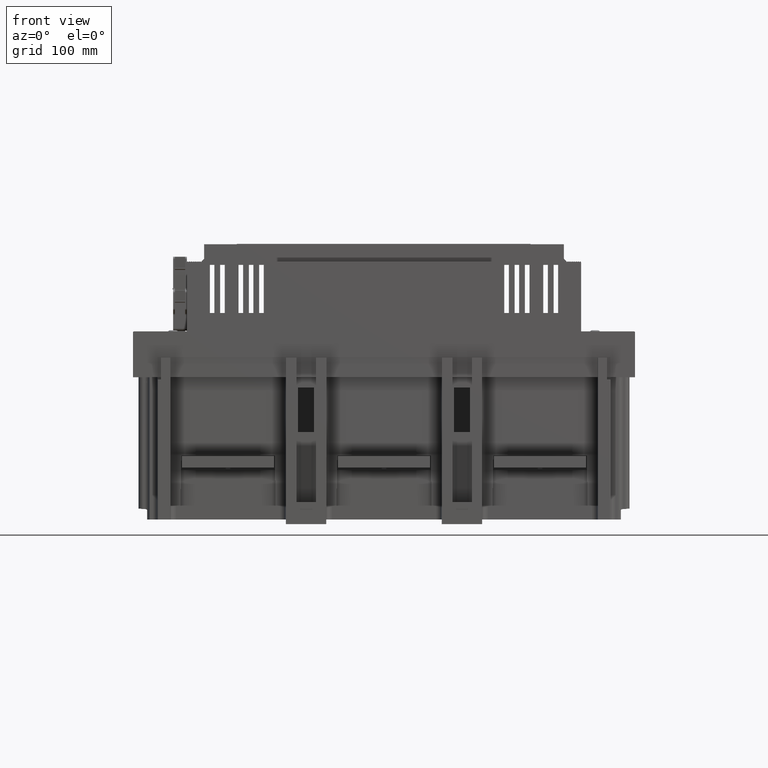
[diagram: clean part render]
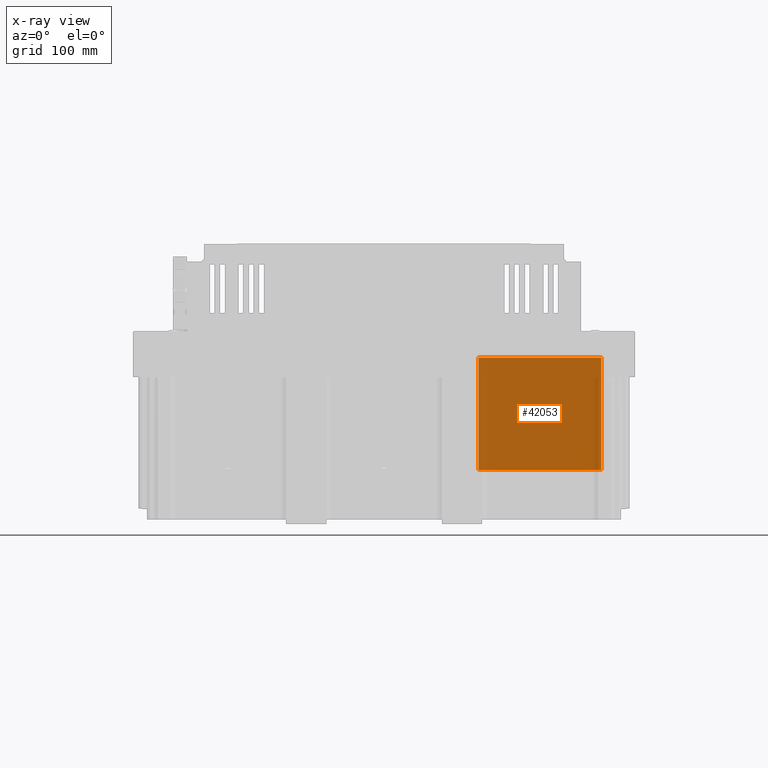
[diagram: x-ray — body ghosted, one internal face saturated and labeled with its STEP entity id]
A machine part, front view, then the same camera in x-ray: the body is ghosted and one INTERNAL B-rep face — a face not visible from any outside direction — is saturated and labeled: STEP entity #42053.
In plain terms, the highlighted planar face has unit normal (0, 1, 0).
Its self-contained STEP definition (entity closure, byte-faithful):
#4572=DIRECTION('',(0.E0,0.E0,1.E0));
#4573=VECTOR('',#4572,1.069E2);
#4574=CARTESIAN_POINT('',(1.45E2,-2.165E1,-1.8945E2));
#4575=LINE('',#4574,#4573);
#8297=DIRECTION('',(0.E0,0.E0,1.E0));
#8298=VECTOR('',#8297,1.069E2);
#8299=CARTESIAN_POINT('',(4.7E1,-2.165E1,-1.8945E2));
#8300=LINE('',#8299,#8298);
#8463=DIRECTION('',(-1.E0,0.E0,0.E0));
#8464=VECTOR('',#8463,9.8E1);
#8465=CARTESIAN_POINT('',(1.45E2,-2.165E1,-8.255E1));
#8466=LINE('',#8465,#8464);
#8470=DIRECTION('',(-1.E0,0.E0,0.E0));
#8471=VECTOR('',#8470,9.8E1);
#8472=CARTESIAN_POINT('',(1.45E2,-2.165E1,-1.8945E2));
#8473=LINE('',#8472,#8471);
#32428=CARTESIAN_POINT('',(4.7E1,-2.165E1,-1.8945E2));
#32429=VERTEX_POINT('',#32428);
#32430=CARTESIAN_POINT('',(4.7E1,-2.165E1,-8.255E1));
#32431=VERTEX_POINT('',#32430);
#32444=CARTESIAN_POINT('',(1.45E2,-2.165E1,-1.8945E2));
#32445=VERTEX_POINT('',#32444);
#32446=CARTESIAN_POINT('',(1.45E2,-2.165E1,-8.255E1));
#32447=VERTEX_POINT('',#32446);
#42041=CARTESIAN_POINT('',(1.45E2,-2.165E1,-1.8945E2));
#42042=DIRECTION('',(0.E0,1.E0,0.E0));
#42043=DIRECTION('',(0.E0,0.E0,1.E0));
#42044=AXIS2_PLACEMENT_3D('',#42041,#42042,#42043);
#42045=PLANE('',#42044);
#42047=ORIENTED_EDGE('',*,*,#42046,.T.);
#42048=ORIENTED_EDGE('',*,*,#41953,.T.);
#42049=ORIENTED_EDGE('',*,*,#42033,.F.);
#42050=ORIENTED_EDGE('',*,*,#40627,.F.);
#42051=EDGE_LOOP('',(#42047,#42048,#42049,#42050));
#42052=FACE_OUTER_BOUND('',#42051,.F.);
#40627=EDGE_CURVE('',#32445,#32447,#4575,.T.);
#41953=EDGE_CURVE('',#32429,#32431,#8300,.T.);
#42033=EDGE_CURVE('',#32447,#32431,#8466,.T.);
#42046=EDGE_CURVE('',#32445,#32429,#8473,.T.);
#42053=ADVANCED_FACE('',(#42052),#42045,.F.);